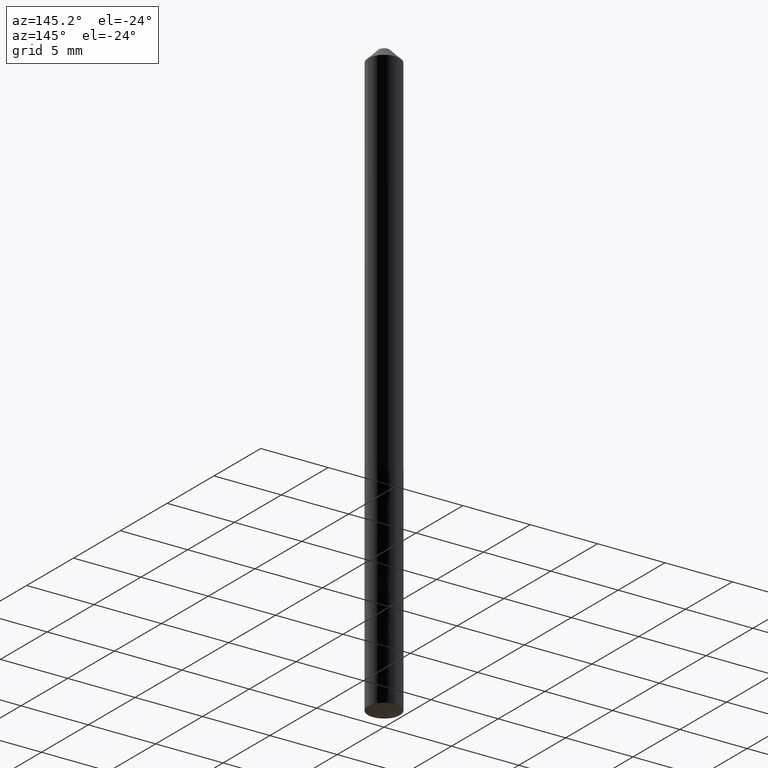
[diagram: clean part render]
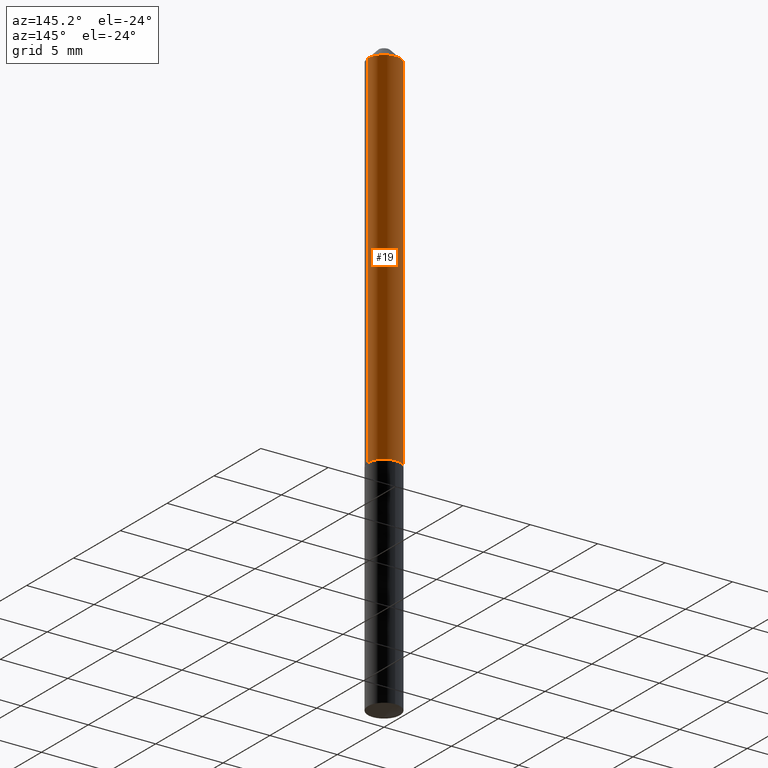
[diagram: same view with one face highlighted and labeled with its STEP entity id]
A machine part, auxiliary view. The second image highlights one B-rep face of the part: STEP entity #19.
In plain terms, the highlighted cylindrical surface (edge-blend (fillet) strip) has radius 1.1913 mm, axis along (-0, 0, 1).
Its self-contained STEP definition (entity closure, byte-faithful):
#7 = DIRECTION ( 'NONE',  ( 1.000000000000000000, -6.982962677686267499E-15, 4.876176775795936914E-29 ) ) ;
#14 = CARTESIAN_POINT ( 'NONE',  ( 2.673631045802209744E-29, -3.817236547757210376E-15, -1.093299999999999939 ) ) ;
#16 = DIRECTION ( 'NONE',  ( 1.000000000000000000, -6.982962677686267499E-15, 0.000000000000000000 ) ) ;
#19 = ADVANCED_FACE ( 'NONE', ( #69 ), #171, .T. ) ;
#33 = ORIENTED_EDGE ( 'NONE', *, *, #39, .T. ) ;
#34 = CARTESIAN_POINT ( 'NONE',  ( -0.04690000000000006664, 3.332445430714874606E-16, -2.306980557329554105E-30 ) ) ;
#39 = EDGE_CURVE ( 'NONE', #366, #360, #216, .T. ) ;
#47 = ORIENTED_EDGE ( 'NONE', *, *, #242, .F. ) ;
#57 = VERTEX_POINT ( 'NONE', #165 ) ;
#69 = FACE_OUTER_BOUND ( 'NONE', #96, .T. ) ;
#72 = CARTESIAN_POINT ( 'NONE',  ( -0.04690000000000013602, -3.483992004685722619E-15, -1.093299999999999939 ) ) ;
#77 = DIRECTION ( 'NONE',  ( -2.445468806185136597E-29, 3.491481338843145583E-15, 1.000000000000000000 ) ) ;
#88 = DIRECTION ( 'NONE',  ( -2.445468806185136597E-29, 3.491481338843145583E-15, 1.000000000000000000 ) ) ;
#96 = EDGE_LOOP ( 'NONE', ( #33, #350, #47, #154 ) ) ;
#133 = CARTESIAN_POINT ( 'NONE',  ( 0.04690000000000013602, -4.144737497340697067E-15, -1.093299999999999939 ) ) ;
#142 = CIRCLE ( 'NONE', #156, 0.04690000000000001112 ) ;
#153 = LINE ( 'NONE', #389, #207 ) ;
#154 = ORIENTED_EDGE ( 'NONE', *, *, #268, .F. ) ;
#156 = AXIS2_PLACEMENT_3D ( 'NONE', #303, #88, #220 ) ;
#163 = VECTOR ( 'NONE', #306, 39.37007874015748143 ) ;
#165 = CARTESIAN_POINT ( 'NONE',  ( 0.04690000000000001112, -4.366097414223349538E-16, -0.03125000000000020123 ) ) ;
#171 = CYLINDRICAL_SURFACE ( 'NONE', #269, 0.04690000000000006664 ) ;
#200 = EDGE_CURVE ( 'NONE', #360, #251, #344, .T. ) ;
#207 = VECTOR ( 'NONE', #277, 39.37007874015748143 ) ;
#216 = CIRCLE ( 'NONE', #232, 0.04690000000000013602 ) ;
#220 = DIRECTION ( 'NONE',  ( 1.000000000000000000, -6.982962677686265922E-15, 0.000000000000000000 ) ) ;
#222 = CARTESIAN_POINT ( 'NONE',  ( -0.04690000000000001112, -1.629928126726541587E-15, -0.03125000000000020123 ) ) ;
#232 = AXIS2_PLACEMENT_3D ( 'NONE', #14, #77, #16 ) ;
#242 = EDGE_CURVE ( 'NONE', #57, #251, #142, .T. ) ;
#251 = VERTEX_POINT ( 'NONE', #222 ) ;
#268 = EDGE_CURVE ( 'NONE', #366, #57, #153, .T. ) ;
#269 = AXIS2_PLACEMENT_3D ( 'NONE', #286, #291, #7 ) ;
#277 = DIRECTION ( 'NONE',  ( -2.445468806185136877E-29, 3.491481338843145188E-15, 1.000000000000000000 ) ) ;
#286 = CARTESIAN_POINT ( 'NONE',  ( 0.000000000000000000, 0.000000000000000000, 0.000000000000000000 ) ) ;
#291 = DIRECTION ( 'NONE',  ( -2.445468806185136597E-29, 3.491481338843145583E-15, 1.000000000000000000 ) ) ;
#303 = CARTESIAN_POINT ( 'NONE',  ( 7.642090019328601786E-31, -1.091087918388490144E-16, -0.03125000000000020123 ) ) ;
#306 = DIRECTION ( 'NONE',  ( -2.445468806185136877E-29, 3.491481338843145188E-15, 1.000000000000000000 ) ) ;
#344 = LINE ( 'NONE', #34, #163 ) ;
#350 = ORIENTED_EDGE ( 'NONE', *, *, #200, .T. ) ;
#360 = VERTEX_POINT ( 'NONE', #72 ) ;
#366 = VERTEX_POINT ( 'NONE', #133 ) ;
#389 = CARTESIAN_POINT ( 'NONE',  ( 0.04690000000000006664, -3.275009495834863955E-16, 2.286926907848297541E-30 ) ) ;